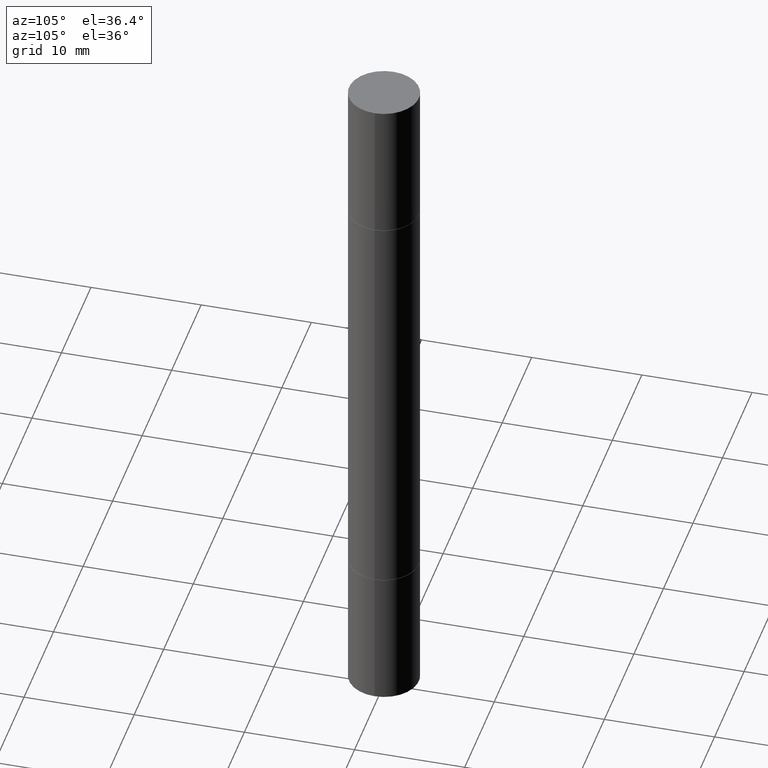
[diagram: clean part render]
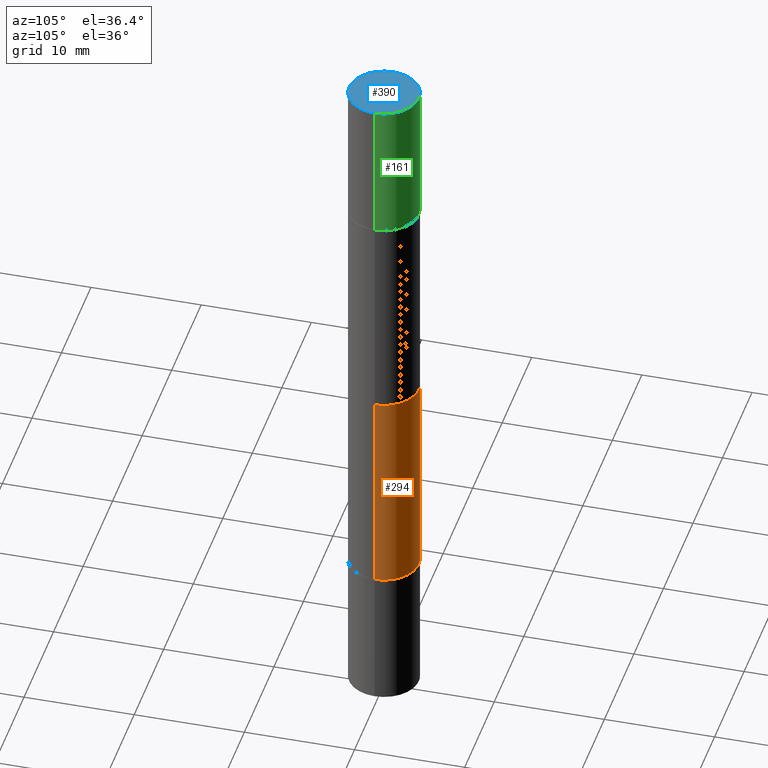
[diagram: same view with three faces highlighted in distinct colors, each labeled with its STEP entity id]
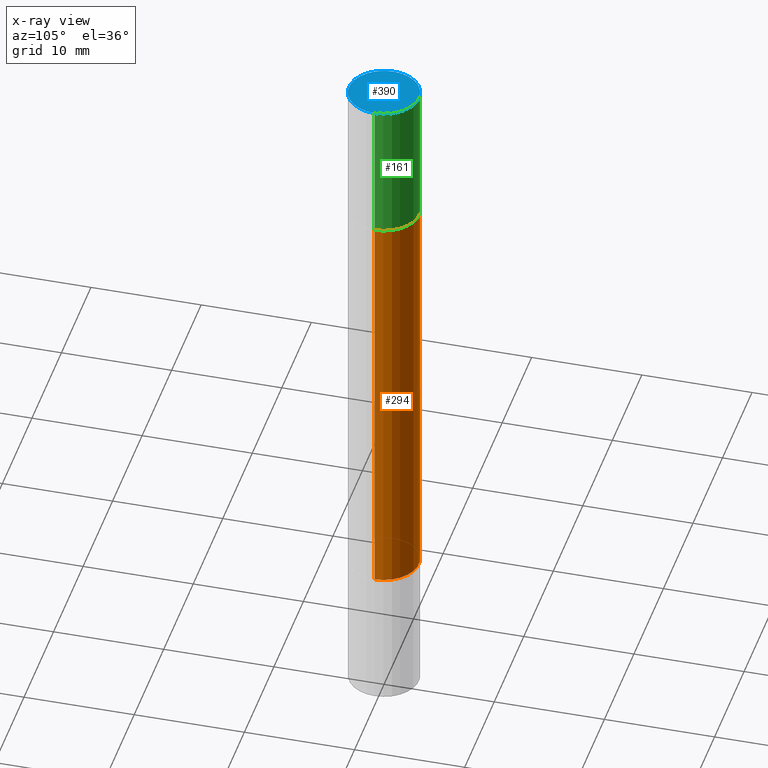
[diagram: x-ray of the same camera — body ghosted, the three highlighted faces saturated]
A machine part, auxiliary view with three faces highlighted in distinct colors.
The next image is the same camera in x-ray (body ghosted, the three faces saturated) — at least one of them is partly hidden behind the body in this view.
Their STEP definitions:

[orange] entity #294 — the highlighted cylindrical surface (edge-blend (fillet) strip) has radius 3.175 mm, axis along (-0, -0, -1).
#17 = EDGE_CURVE ( 'NONE', #463, #238, #537, .T. ) ;
#34 = VECTOR ( 'NONE', #436, 39.37007874015748143 ) ;
#36 = CIRCLE ( 'NONE', #649, 0.1249999999999999861 ) ;
#108 = DIRECTION ( 'NONE',  ( 1.000000000000000000, -6.982962677686263555E-15, 0.000000000000000000 ) ) ;
#109 = CARTESIAN_POINT ( 'NONE',  ( -0.1249999999999999861, -8.906145055802259979E-16, -0.5009999999999996678 ) ) ;
#137 = DIRECTION ( 'NONE',  ( -2.445468806185136597E-29, -3.492890411551752677E-15, -1.000000000000000000 ) ) ;
#141 = EDGE_CURVE ( 'NONE', #463, #227, #446, .T. ) ;
#166 = CARTESIAN_POINT ( 'NONE',  ( 0.1249999999999999861, -7.852341531058230708E-15, -1.998999999999999888 ) ) ;
#177 = AXIS2_PLACEMENT_3D ( 'NONE', #666, #308, #620 ) ;
#179 = AXIS2_PLACEMENT_3D ( 'NONE', #291, #137, #604 ) ;
#185 = CYLINDRICAL_SURFACE ( 'NONE', #179, 0.1249999999999998612 ) ;
#187 = EDGE_CURVE ( 'NONE', #238, #393, #328, .T. ) ;
#190 = ORIENTED_EDGE ( 'NONE', *, *, #644, .T. ) ;
#227 = VERTEX_POINT ( 'NONE', #166 ) ;
#238 = VERTEX_POINT ( 'NONE', #109 ) ;
#291 = CARTESIAN_POINT ( 'NONE',  ( 0.000000000000000000, -8.730464687993621641E-15, -2.499999999999999556 ) ) ;
#294 = ADVANCED_FACE ( 'NONE', ( #413 ), #185, .T. ) ;
#308 = DIRECTION ( 'NONE',  ( 2.445468806185136597E-29, 3.492890411551752677E-15, 1.000000000000000000 ) ) ;
#328 = LINE ( 'NONE', #496, #34 ) ;
#331 = DIRECTION ( 'NONE',  ( -2.445468806185136877E-29, -3.492890411551753071E-15, -1.000000000000000000 ) ) ;
#379 = DIRECTION ( 'NONE',  ( -2.445468806185136597E-29, 3.491481338843145583E-15, 1.000000000000000000 ) ) ;
#393 = VERTEX_POINT ( 'NONE', #398 ) ;
#398 = CARTESIAN_POINT ( 'NONE',  ( -0.1249999999999999861, -3.506789423832488265E-15, -1.998999999999999888 ) ) ;
#410 = VECTOR ( 'NONE', #331, 39.37007874015748143 ) ;
#413 = FACE_OUTER_BOUND ( 'NONE', #495, .T. ) ;
#423 = CARTESIAN_POINT ( 'NONE',  ( 0.1249999999999999861, -2.621047090012450585E-15, -0.5009999999999996678 ) ) ;
#436 = DIRECTION ( 'NONE',  ( -2.445468806185136877E-29, -3.492890411551753071E-15, -1.000000000000000000 ) ) ;
#446 = LINE ( 'NONE', #642, #410 ) ;
#463 = VERTEX_POINT ( 'NONE', #423 ) ;
#495 = EDGE_LOOP ( 'NONE', ( #556, #593, #605, #190 ) ) ;
#496 = CARTESIAN_POINT ( 'NONE',  ( -0.1249999999999998612, -7.872902438272180196E-15, -2.499999999999999556 ) ) ;
#536 = CARTESIAN_POINT ( 'NONE',  ( 4.888492143564087591E-29, -6.979471196347447369E-15, -1.998999999999999888 ) ) ;
#537 = CIRCLE ( 'NONE', #177, 0.1249999999999999861 ) ;
#556 = ORIENTED_EDGE ( 'NONE', *, *, #187, .F. ) ;
#593 = ORIENTED_EDGE ( 'NONE', *, *, #17, .F. ) ;
#604 = DIRECTION ( 'NONE',  ( 1.000000000000000000, -6.982962677686262766E-15, 0.000000000000000000 ) ) ;
#605 = ORIENTED_EDGE ( 'NONE', *, *, #141, .T. ) ;
#620 = DIRECTION ( 'NONE',  ( 1.000000000000000000, -6.982962677686267499E-15, 0.000000000000000000 ) ) ;
#642 = CARTESIAN_POINT ( 'NONE',  ( 0.1249999999999998612, -9.603335022704403402E-15, -2.499999999999999556 ) ) ;
#644 = EDGE_CURVE ( 'NONE', #227, #393, #36, .T. ) ;
#649 = AXIS2_PLACEMENT_3D ( 'NONE', #536, #379, #108 ) ;
#666 = CARTESIAN_POINT ( 'NONE',  ( 4.888492143564087591E-29, -1.748176755301667838E-15, -0.5009999999999996678 ) ) ;

[blue] entity #390 — the highlighted planar face has unit normal (0, 0, 1).
#11 = VERTEX_POINT ( 'NONE', #428 ) ;
#13 = EDGE_CURVE ( 'NONE', #414, #11, #102, .T. ) ;
#30 = PLANE ( 'NONE',  #301 ) ;
#40 = CARTESIAN_POINT ( 'NONE',  ( 0.1250000000000000000, -8.711089938250227947E-16, 5.463695987328526437E-16 ) ) ;
#75 = DIRECTION ( 'NONE',  ( -1.000000000000000000, 6.982962677686265922E-15, -9.839502134516470631E-33 ) ) ;
#93 = DIRECTION ( 'NONE',  ( 2.445468806185136597E-29, 3.492890411551752677E-15, 1.000000000000000000 ) ) ;
#102 = CIRCLE ( 'NONE', #299, 0.1250000000000000000 ) ;
#135 = EDGE_LOOP ( 'NONE', ( #336, #469 ) ) ;
#144 = DIRECTION ( 'NONE',  ( 1.000000000000000000, -6.982962677686266711E-15, 0.000000000000000000 ) ) ;
#204 = CARTESIAN_POINT ( 'NONE',  ( 6.113672015462842613E-29, 1.761340885760521790E-18, 5.463695987328526437E-16 ) ) ;
#249 = DIRECTION ( 'NONE',  ( 1.000000000000000000, -6.982962677686266711E-15, 0.000000000000000000 ) ) ;
#260 = DIRECTION ( 'NONE',  ( 2.445468806185136597E-29, 3.492890411551752677E-15, 1.000000000000000000 ) ) ;
#282 = FACE_OUTER_BOUND ( 'NONE', #135, .T. ) ;
#293 = CARTESIAN_POINT ( 'NONE',  ( 8.728703347108443769E-16, 0.1250000000000000278, 0.000000000000000000 ) ) ;
#299 = AXIS2_PLACEMENT_3D ( 'NONE', #204, #260, #249 ) ;
#301 = AXIS2_PLACEMENT_3D ( 'NONE', #293, #503, #75 ) ;
#336 = ORIENTED_EDGE ( 'NONE', *, *, #13, .T. ) ;
#390 = ADVANCED_FACE ( 'NONE', ( #282 ), #30, .T. ) ;
#414 = VERTEX_POINT ( 'NONE', #40 ) ;
#428 = CARTESIAN_POINT ( 'NONE',  ( -0.1250000000000000000, -1.389901228073636467E-17, 5.463695987328557991E-16 ) ) ;
#459 = AXIS2_PLACEMENT_3D ( 'NONE', #580, #93, #144 ) ;
#469 = ORIENTED_EDGE ( 'NONE', *, *, #505, .T. ) ;
#503 = DIRECTION ( 'NONE',  ( 2.438088387897959769E-29, 3.492890411551753071E-15, 1.000000000000000000 ) ) ;
#505 = EDGE_CURVE ( 'NONE', #11, #414, #601, .T. ) ;
#580 = CARTESIAN_POINT ( 'NONE',  ( 6.113672015462842613E-29, 1.761340885760521790E-18, 5.463695987328526437E-16 ) ) ;
#601 = CIRCLE ( 'NONE', #459, 0.1250000000000000000 ) ;

[green] entity #161 — the highlighted cylindrical surface (edge-blend (fillet) strip) has radius 3.175 mm, axis along (-0, -0, -1).
#2 = VECTOR ( 'NONE', #573, 39.37007874015748143 ) ;
#11 = VERTEX_POINT ( 'NONE', #428 ) ;
#13 = EDGE_CURVE ( 'NONE', #414, #11, #102, .T. ) ;
#35 = VECTOR ( 'NONE', #130, 39.37007874015748143 ) ;
#37 = EDGE_CURVE ( 'NONE', #11, #326, #669, .T. ) ;
#40 = CARTESIAN_POINT ( 'NONE',  ( 0.1250000000000000000, -8.711089938250227947E-16, 5.463695987328526437E-16 ) ) ;
#69 = DIRECTION ( 'NONE',  ( 1.000000000000000000, -6.982962677686270655E-15, 0.000000000000000000 ) ) ;
#77 = AXIS2_PLACEMENT_3D ( 'NONE', #272, #275, #69 ) ;
#102 = CIRCLE ( 'NONE', #299, 0.1250000000000000000 ) ;
#111 = FACE_OUTER_BOUND ( 'NONE', #175, .T. ) ;
#130 = DIRECTION ( 'NONE',  ( -2.445468806185136877E-29, -3.492890411551753071E-15, -1.000000000000000000 ) ) ;
#161 = ADVANCED_FACE ( 'NONE', ( #111 ), #542, .T. ) ;
#175 = EDGE_LOOP ( 'NONE', ( #214, #392, #273, #349 ) ) ;
#183 = VERTEX_POINT ( 'NONE', #637 ) ;
#204 = CARTESIAN_POINT ( 'NONE',  ( 6.113672015462842613E-29, 1.761340885760521790E-18, 5.463695987328526437E-16 ) ) ;
#214 = ORIENTED_EDGE ( 'NONE', *, *, #37, .F. ) ;
#231 = EDGE_CURVE ( 'NONE', #183, #326, #267, .T. ) ;
#249 = DIRECTION ( 'NONE',  ( 1.000000000000000000, -6.982962677686266711E-15, 0.000000000000000000 ) ) ;
#260 = DIRECTION ( 'NONE',  ( 2.445468806185136597E-29, 3.492890411551752677E-15, 1.000000000000000000 ) ) ;
#267 = CIRCLE ( 'NONE', #567, 0.1250000000000000000 ) ;
#272 = CARTESIAN_POINT ( 'NONE',  ( 0.000000000000000000, -8.730464687993621641E-15, -2.499999999999999556 ) ) ;
#273 = ORIENTED_EDGE ( 'NONE', *, *, #397, .T. ) ;
#275 = DIRECTION ( 'NONE',  ( -2.445468806185136597E-29, -3.492890411551752677E-15, -1.000000000000000000 ) ) ;
#299 = AXIS2_PLACEMENT_3D ( 'NONE', #204, #260, #249 ) ;
#326 = VERTEX_POINT ( 'NONE', #606 ) ;
#349 = ORIENTED_EDGE ( 'NONE', *, *, #231, .T. ) ;
#386 = DIRECTION ( 'NONE',  ( 1.000000000000000000, -6.982962677686266711E-15, 0.000000000000000000 ) ) ;
#392 = ORIENTED_EDGE ( 'NONE', *, *, #13, .F. ) ;
#397 = EDGE_CURVE ( 'NONE', #414, #183, #464, .T. ) ;
#414 = VERTEX_POINT ( 'NONE', #40 ) ;
#428 = CARTESIAN_POINT ( 'NONE',  ( -0.1250000000000000000, -1.389901228073636467E-17, 5.463695987328557991E-16 ) ) ;
#441 = DIRECTION ( 'NONE',  ( 2.445468806185136597E-29, 3.492890411551752677E-15, 1.000000000000000000 ) ) ;
#450 = CARTESIAN_POINT ( 'NONE',  ( 4.890937612370273194E-29, -1.744683864890115301E-15, -0.4999999999999996114 ) ) ;
#464 = LINE ( 'NONE', #651, #35 ) ;
#542 = CYLINDRICAL_SURFACE ( 'NONE', #77, 0.1250000000000000000 ) ;
#565 = CARTESIAN_POINT ( 'NONE',  ( -0.1250000000000000000, -7.872902438272180196E-15, -2.499999999999999556 ) ) ;
#567 = AXIS2_PLACEMENT_3D ( 'NONE', #450, #441, #386 ) ;
#573 = DIRECTION ( 'NONE',  ( -2.445468806185136877E-29, -3.492890411551753071E-15, -1.000000000000000000 ) ) ;
#606 = CARTESIAN_POINT ( 'NONE',  ( -0.1250000000000000000, -1.389901228073636467E-17, -0.4999999999999996114 ) ) ;
#637 = CARTESIAN_POINT ( 'NONE',  ( 0.1250000000000000000, -2.617554199600898443E-15, -0.4999999999999996114 ) ) ;
#651 = CARTESIAN_POINT ( 'NONE',  ( 0.1250000000000000000, -9.603335022704404980E-15, -2.499999999999999556 ) ) ;
#669 = LINE ( 'NONE', #565, #2 ) ;